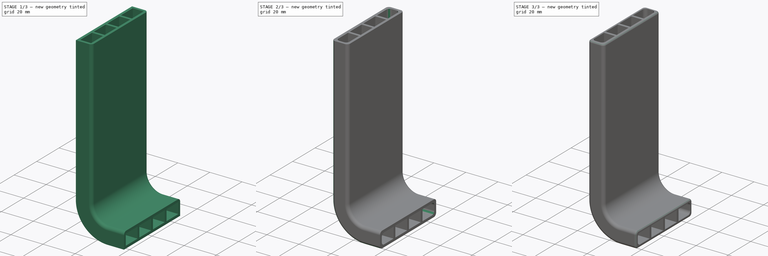
[diagram: build sequence overview — one tinted view per stage of 3, left to right]
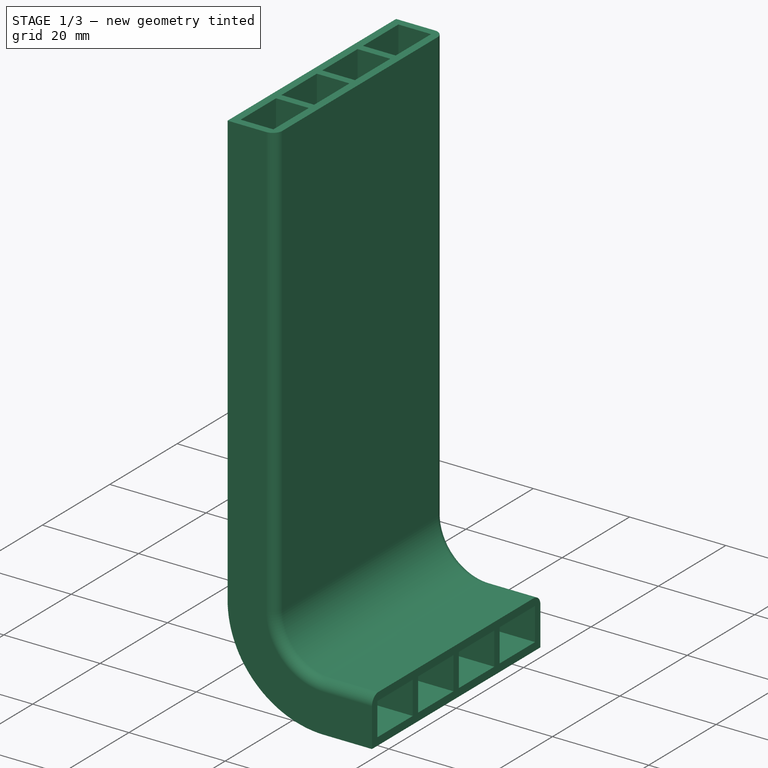
[diagram: stage 1 of 3 — iso view after this stage's code; geometry added in this stage tinted green]
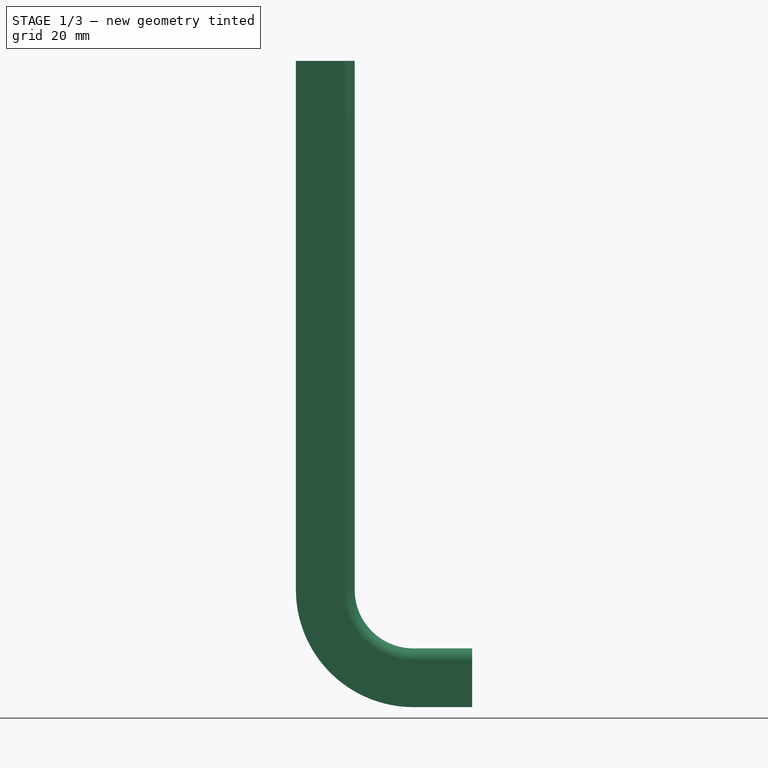
[diagram: stage 1 of 3 — front view after this stage's code; geometry added in this stage tinted green]
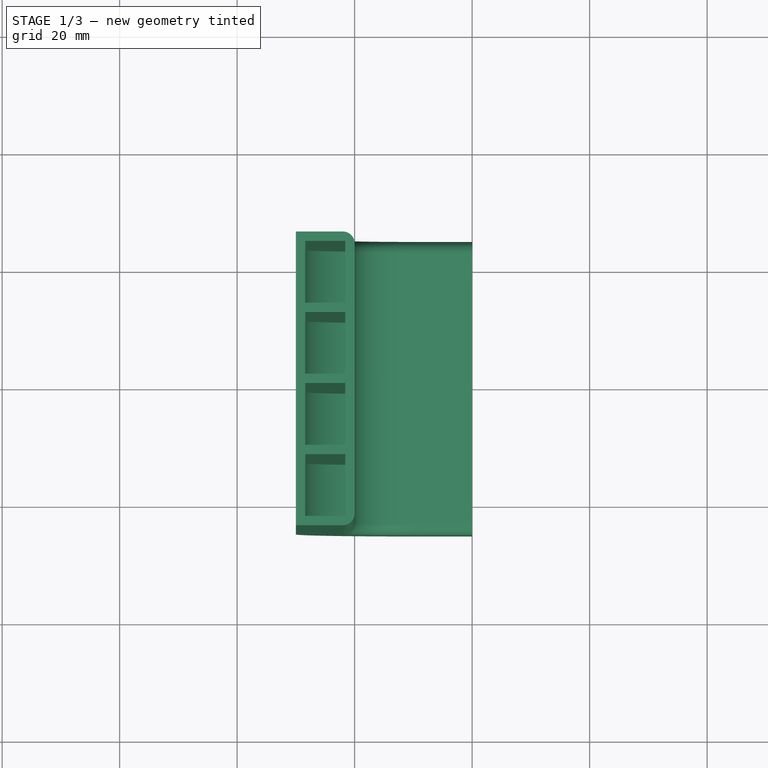
[diagram: stage 1 of 3 — top view after this stage's code; geometry added in this stage tinted green]
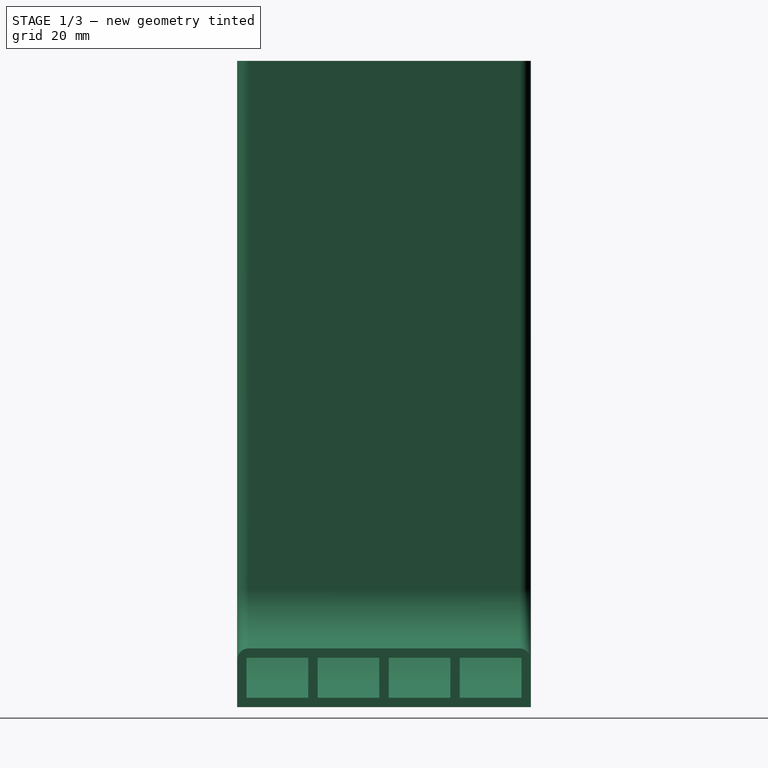
[diagram: stage 1 of 3 — right view after this stage's code; geometry added in this stage tinted green]
FCSTD DOCUMENT  (FreeCAD 1.0R39109 (Git))
Label: MatratzenLüftung_V1
License: All rights reserved
LicenseURL: http://en.wikipedia.org/wiki/All_rights_reserved
objects: PartDesign::Fillet×6, Sketcher::SketchObject×2, PartDesign::AdditivePipe×1, PartDesign::Body×1
note: 26 computed .brp shape members not serialized (recipe doc carries the construction recipe); baked Part::Feature solids carry a one-line shape summary decoded from their .brp

FEATURE [Sketcher::SketchObject] Sketch
  ArcFitTolerance = 1e-06
  AttachmentSupport = -> [YZ_Plane]
  FullyConstrained = true
  MakeInternals = false
  MapMode = 5
  Placement = pos=(0,0,0) rot=(0.57735,0.57735,0.57735;2.0944rad)
  sketch-geometry (21):
    g0: LineSegment StartX=-25 StartY=0 StartZ=0 EndX=25 EndY=0 EndZ=0
    g1: LineSegment StartX=25 StartY=0 StartZ=0 EndX=25 EndY=10 EndZ=0
    g2: LineSegment StartX=25 StartY=10 StartZ=0 EndX=-25 EndY=10 EndZ=0
    g3: LineSegment StartX=-25 StartY=10 StartZ=0 EndX=-25 EndY=0 EndZ=0
    g4: LineSegment [constr] StartX=0 StartY=37.56 StartZ=0 EndX=0 EndY=0 EndZ=0
    g5: LineSegment StartX=-23.4 StartY=8.4 StartZ=0 EndX=-23.4 EndY=1.6 EndZ=0
    g6: LineSegment StartX=-23.4 StartY=1.6 StartZ=0 EndX=-12.9 EndY=1.6 EndZ=0
    g7: LineSegment StartX=-12.9 StartY=1.6 StartZ=0 EndX=-12.9 EndY=8.4 EndZ=0
    g8: LineSegment StartX=-12.9 StartY=8.4 StartZ=0 EndX=-23.4 EndY=8.4 EndZ=0
    g9: LineSegment StartX=-11.3 StartY=8.4 StartZ=0 EndX=-11.3 EndY=1.6 EndZ=0
    g10: LineSegment StartX=-11.3 StartY=1.6 StartZ=0 EndX=-0.8 EndY=1.6 EndZ=0
    g11: LineSegment StartX=-0.8 StartY=1.6 StartZ=0 EndX=-0.8 EndY=8.4 EndZ=0
    g12: LineSegment StartX=-0.8 StartY=8.4 StartZ=0 EndX=-11.3 EndY=8.4 EndZ=0
    g13: LineSegment StartX=0.8 StartY=8.4 StartZ=0 EndX=0.8 EndY=1.6 EndZ=0
    g14: LineSegment StartX=0.8 StartY=1.6 StartZ=0 EndX=11.3 EndY=1.6 EndZ=0
    g15: LineSegment StartX=11.3 StartY=1.6 StartZ=0 EndX=11.3 EndY=8.4 EndZ=0
    g16: LineSegment StartX=11.3 StartY=8.4 StartZ=0 EndX=0.8 EndY=8.4 EndZ=0
    g17: LineSegment StartX=12.9 StartY=8.4 StartZ=0 EndX=12.9 EndY=1.6 EndZ=0
    g18: LineSegment StartX=12.9 StartY=1.6 StartZ=0 EndX=23.4 EndY=1.6 EndZ=0
    g19: LineSegment StartX=23.4 StartY=1.6 StartZ=0 EndX=23.4 EndY=8.4 EndZ=0
    g20: LineSegment StartX=23.4 StartY=8.4 StartZ=0 EndX=12.9 EndY=8.4 EndZ=0
  constraints (62):
    c: Coincident(g0,g1)
    c: Coincident(g1,g2)
    c: Coincident(g2,g3)
    c: Coincident(g3,g0)
    c: Horizontal(g0)
    c: Horizontal(g2)
    c: Vertical(g1)
    c: Vertical(g3)
    c: PointOnObject(g0,g-1)
    c: DistanceY(g1,g1) = 10
    c: Symmetric(g0,g0,g4)
    c: DistanceX(g0,g0) = 50
    c: Coincident(g5,g6)
    c: Coincident(g6,g7)
    c: Coincident(g7,g8)
    c: Coincident(g8,g5)
    c: Vertical(g5)
    c: Vertical(g7)
    c: Horizontal(g6)
    c: Horizontal(g8)
    c: Coincident(g9,g10)
    c: Coincident(g10,g11)
    c: Coincident(g11,g12)
    c: Coincident(g12,g9)
    c: Vertical(g9)
    c: Vertical(g11)
    c: Horizontal(g10)
    c: Horizontal(g12)
    c: Coincident(g13,g14)
    c: Coincident(g14,g15)
    c: Coincident(g15,g16)
    c: Coincident(g16,g13)
    c: Vertical(g13)
    c: Vertical(g15)
    c: Horizontal(g14)
    c: Horizontal(g16)
    c: Coincident(g17,g18)
    c: Coincident(g18,g19)
    c: Coincident(g19,g20)
    c: Coincident(g20,g17)
    c: Vertical(g17)
    c: Vertical(g19)
    c: Horizontal(g18)
    c: Horizontal(g20)
    c: Equal(g6,g10)
    c: Equal(g10,g14)
    c: Equal(g14,g18)
    c: Equal(g5,g9)
    c: Equal(g9,g13)
    c: Equal(g13,g17)
    c: Horizontal(g7,g11)
    c: Horizontal(g11,g15)
    c: Horizontal(g15,g19)
    c: Distance(g2,g8) = 1.6
    c: Distance(g0,g6) = 1.6
    c: Distance(g3,g5) = 1.6
    c: Distance(g1,g19) = 1.6
    c: Distance(g9,g7) = 1.6
    c: Distance(g13,g11) = 1.6
    c: Distance(g17,g15) = 1.6
    c: DistanceY(g4,g4) = 37.56
    c: Coincident(g-1,g4)
FEATURE [Sketcher::SketchObject] Sketch001
  ArcFitTolerance = 1e-06
  AttachmentSupport = -> [XZ_Plane]
  FullyConstrained = true
  MakeInternals = false
  MapMode = 5
  Placement = pos=(0,0,0) rot=(1,0,0;1.5708rad)
  sketch-geometry (3):
    g0: LineSegment StartX=0 StartY=0 StartZ=0 EndX=-10 EndY=0 EndZ=0
    g1: ArcOfCircle CenterX=-10 CenterY=20 CenterZ=0 NormalX=0 NormalY=0 NormalZ=1 AngleXU=0 Radius=20 StartAngle=3.14159 EndAngle=4.71239
    g2: LineSegment StartX=-30 StartY=20 StartZ=0 EndX=-30 EndY=110 EndZ=0
  constraints (8):
    c: Coincident(g-1,g0)
    c: PointOnObject(g0,g-1)
    c: Tangent(g0,g1) = 1.5708
    c: Tangent(g1,g2) = 1.5708
    c: Radius(g1) = 20
    c: Angle(g0,g2) = 1.5708
    c: DistanceY(g2,g2) = 90
    c: DistanceX(g0,g0) = 10
FEATURE [PartDesign::AdditivePipe] AdditivePipe
  AuxilleryCurvelinear = true
  AuxillerySpineTangent = false
  Binormal = (0,0,0)
  Mode = 0
  Placement = pos=(0,0,0) rot=(1,1,1;2.0944rad)
  Profile = -> Sketch
  Spine = -> Sketch001 [Edge1,Edge2,Edge3]
  SpineTangent = false
  Suppressed = false
  Transformation = 0
  Transition = 0
FEATURE [PartDesign::Fillet] Fillet
  Base = -> AdditivePipe [Edge60,Edge34,Edge26,Edge59,Edge32,Edge24]
  BaseFeature = -> AdditivePipe
  Placement = pos=(0,0,0) rot=(1,1,1;2.0944rad)
  Radius = 2
  SupportTransform = false
  Suppressed = false
  UseAllEdges = false
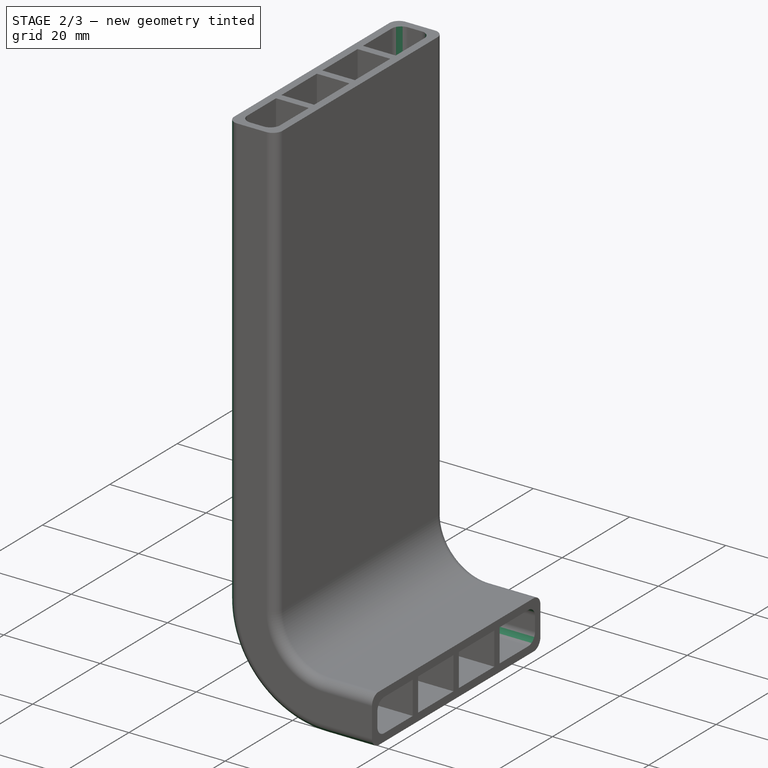
[diagram: stage 2 of 3 — iso view after this stage's code; geometry added in this stage tinted green]
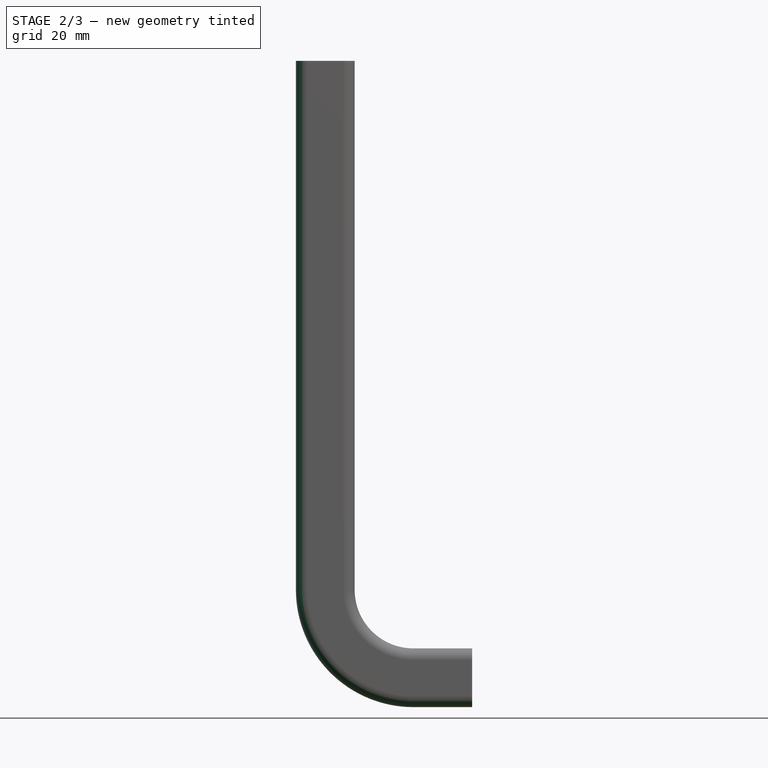
[diagram: stage 2 of 3 — front view after this stage's code; geometry added in this stage tinted green]
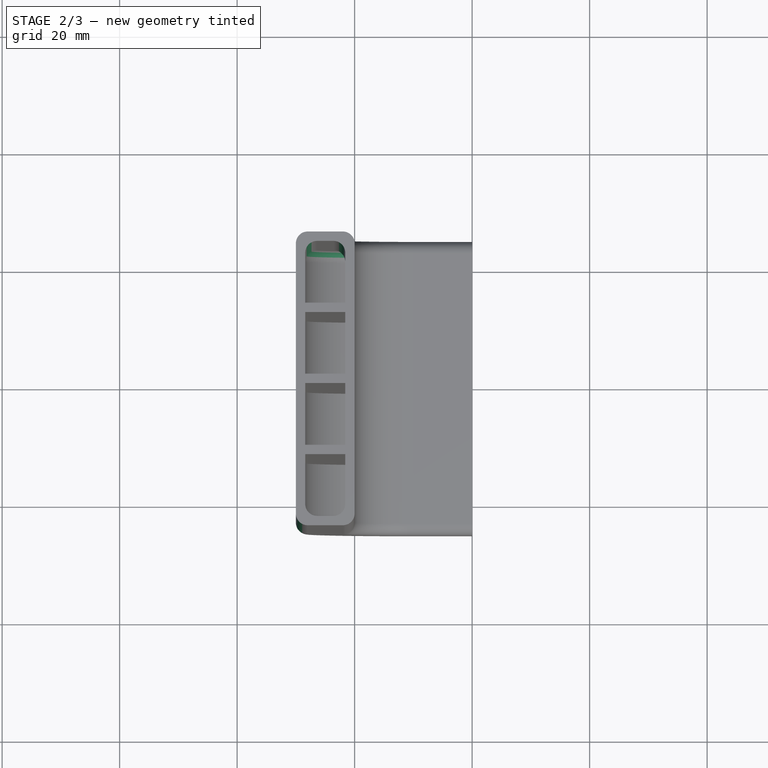
[diagram: stage 2 of 3 — top view after this stage's code; geometry added in this stage tinted green]
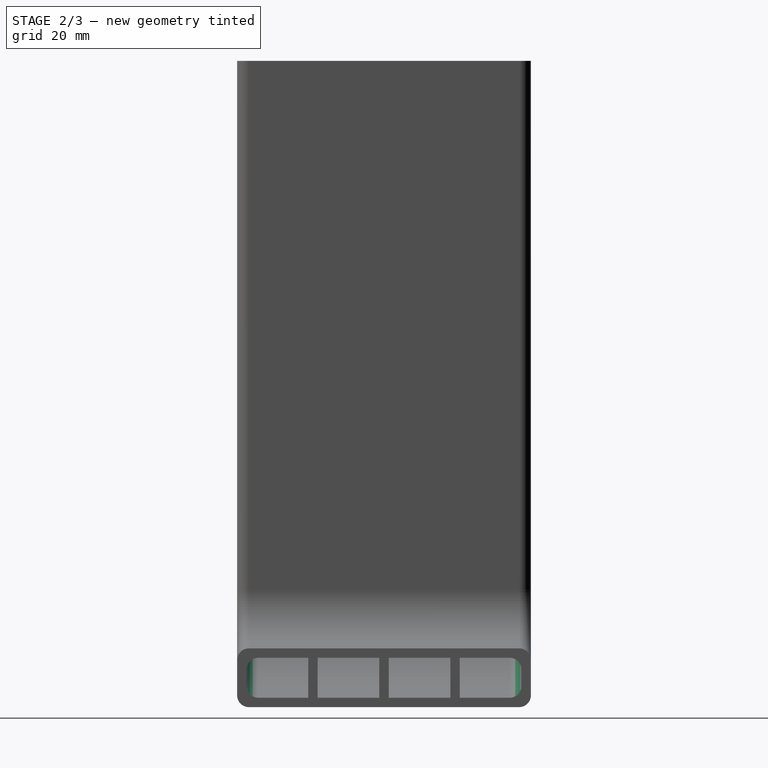
[diagram: stage 2 of 3 — right view after this stage's code; geometry added in this stage tinted green]
FEATURE [PartDesign::Fillet] Fillet001
  Base = -> Fillet [Edge24,Edge68,Edge112,Edge116,Edge72,Edge28]
  BaseFeature = -> Fillet
  Placement = pos=(0,0,0) rot=(1,1,1;2.0944rad)
  Radius = 2
  SupportTransform = false
  Suppressed = false
  UseAllEdges = false
FEATURE [PartDesign::Fillet] Fillet002
  Base = -> Fillet001 [Edge150,Edge146,Edge102,Edge98,Edge50,Edge54]
  BaseFeature = -> Fillet001
  Placement = pos=(0,0,0) rot=(1,1,1;2.0944rad)
  Radius = 2
  SupportTransform = false
  Suppressed = false
  UseAllEdges = false
FEATURE [PartDesign::Fillet] Fillet003
  Base = -> Fillet002 [Edge170,Edge167,Edge118,Edge115,Edge63,Edge66]
  BaseFeature = -> Fillet002
  Placement = pos=(0,0,0) rot=(1,1,1;2.0944rad)
  Radius = 2
  SupportTransform = false
  Suppressed = false
  UseAllEdges = false
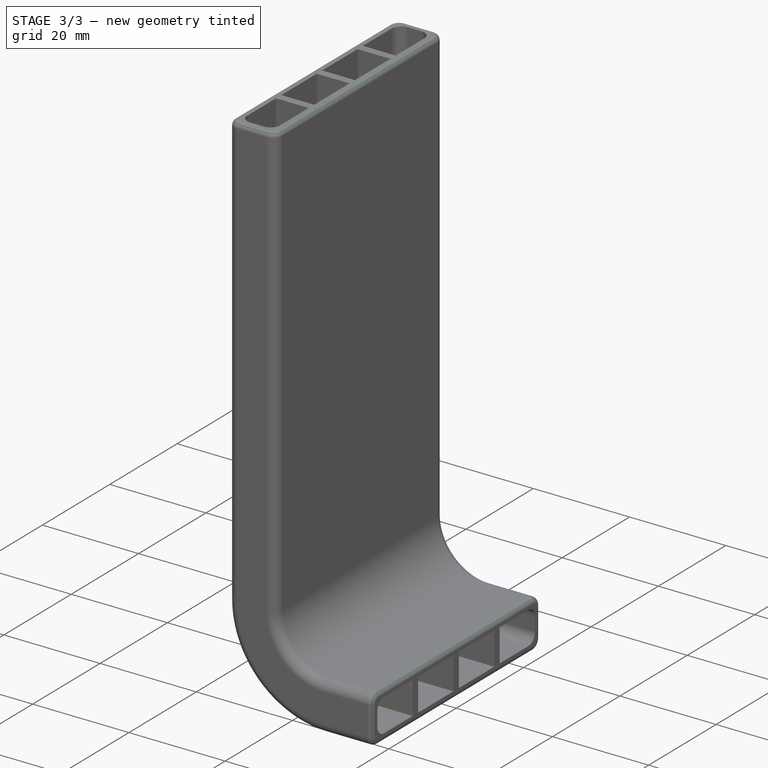
[diagram: stage 3 of 3 — iso view after this stage's code; geometry added in this stage tinted green]
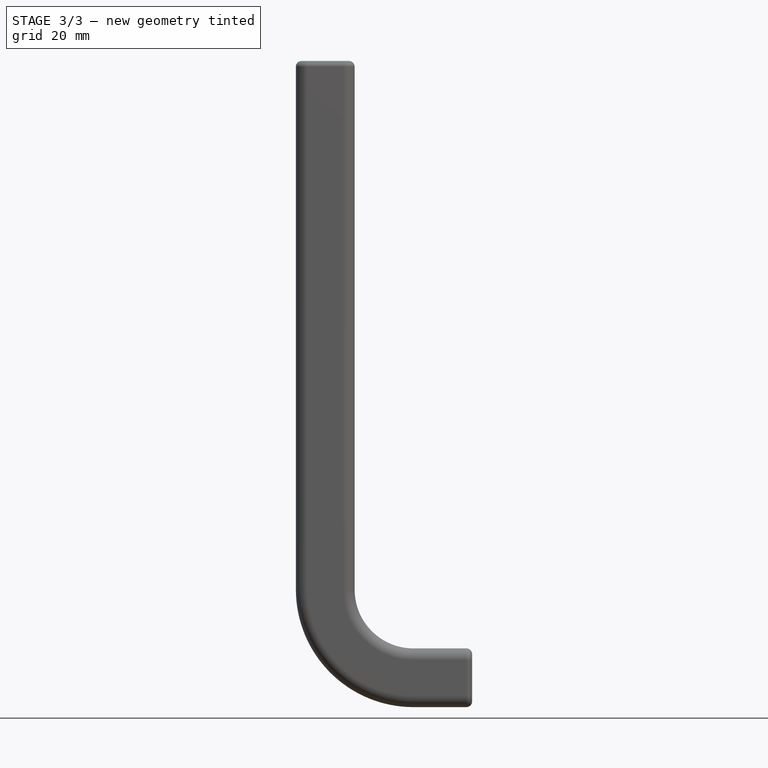
[diagram: stage 3 of 3 — front view after this stage's code; geometry added in this stage tinted green]
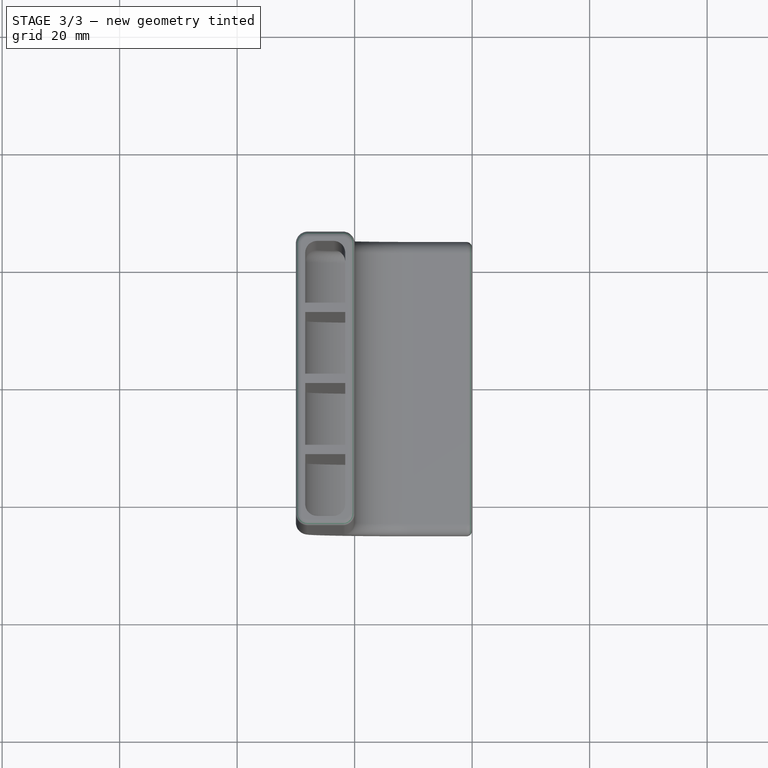
[diagram: stage 3 of 3 — top view after this stage's code; geometry added in this stage tinted green]
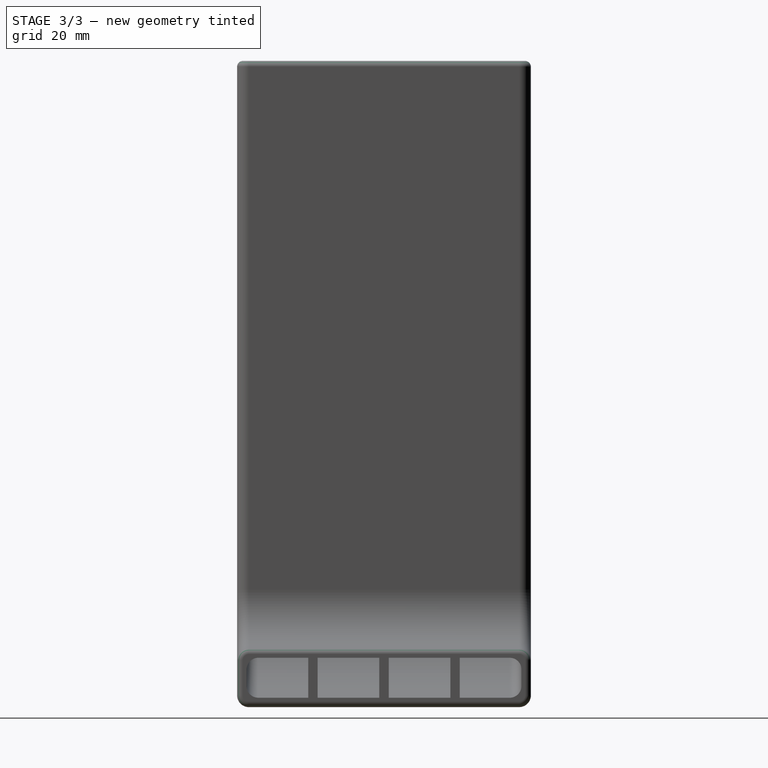
[diagram: stage 3 of 3 — right view after this stage's code; geometry added in this stage tinted green]
FEATURE [PartDesign::Fillet] Fillet004
  Base = -> Fillet003 [Edge17,Edge19,Edge20,Edge18,Edge16,Edge14,Edge13,Edge15]
  BaseFeature = -> Fillet003
  Placement = pos=(0,0,0) rot=(1,1,1;2.0944rad)
  Radius = 1
  SupportTransform = false
  Suppressed = false
  UseAllEdges = false
FEATURE [PartDesign::Fillet] Fillet005
  Base = -> Fillet004 [Edge199,Edge203,Edge207,Edge211,Edge212,Edge209,Edge205,Edge201]
  BaseFeature = -> Fillet004
  Placement = pos=(0,0,0) rot=(1,1,1;2.0944rad)
  Radius = 1
  SupportTransform = false
  Suppressed = false
  UseAllEdges = false
FEATURE [PartDesign::Body] Body  label="Körper"
  AllowCompound = false
  Group = -> [Sketch,Sketch001,AdditivePipe,Fillet,Fillet001,Fillet002,Fillet003,Fillet004,Fillet005]
  Origin = -> Origin
  Tip = -> Fillet005
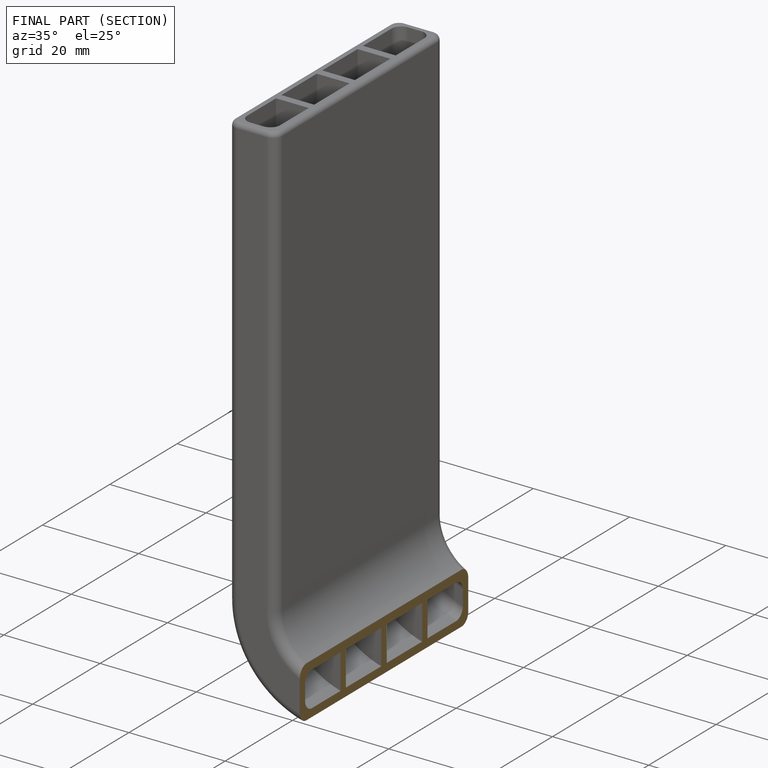
[diagram: finished part — half-section view (interior)]
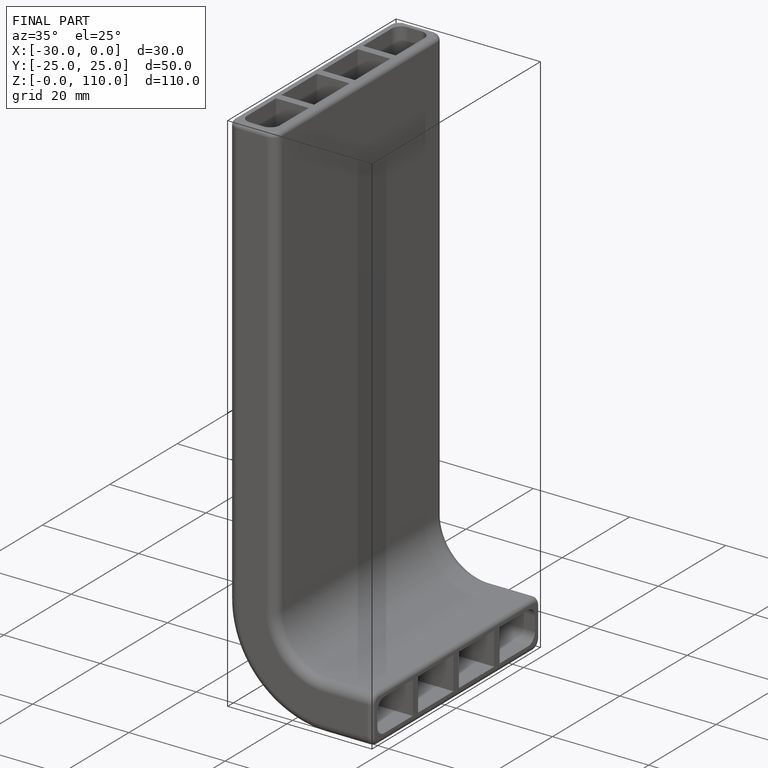
[diagram: finished part — iso view with bounding-box wireframe]
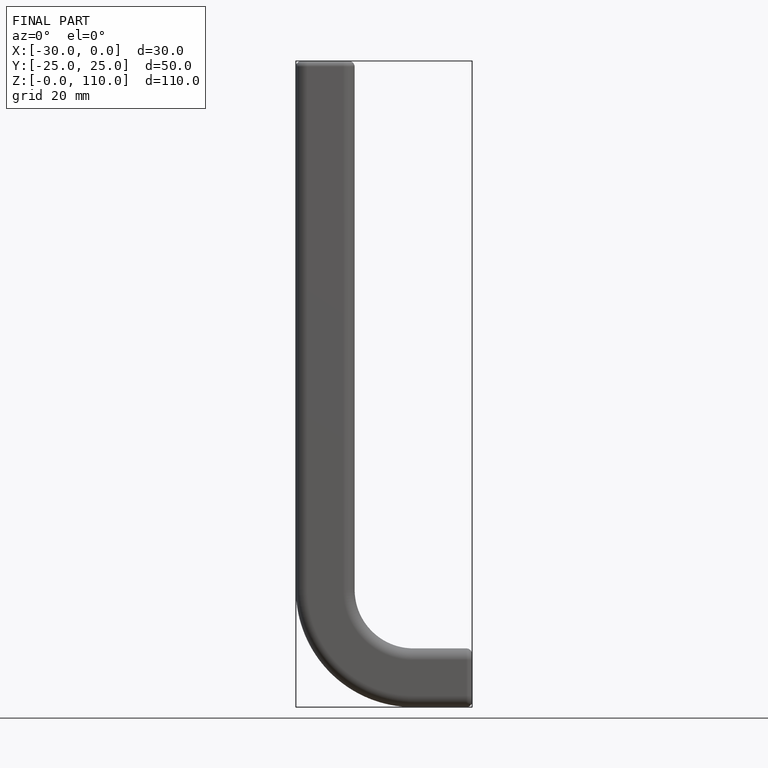
[diagram: finished part — front view with bounding-box wireframe]
